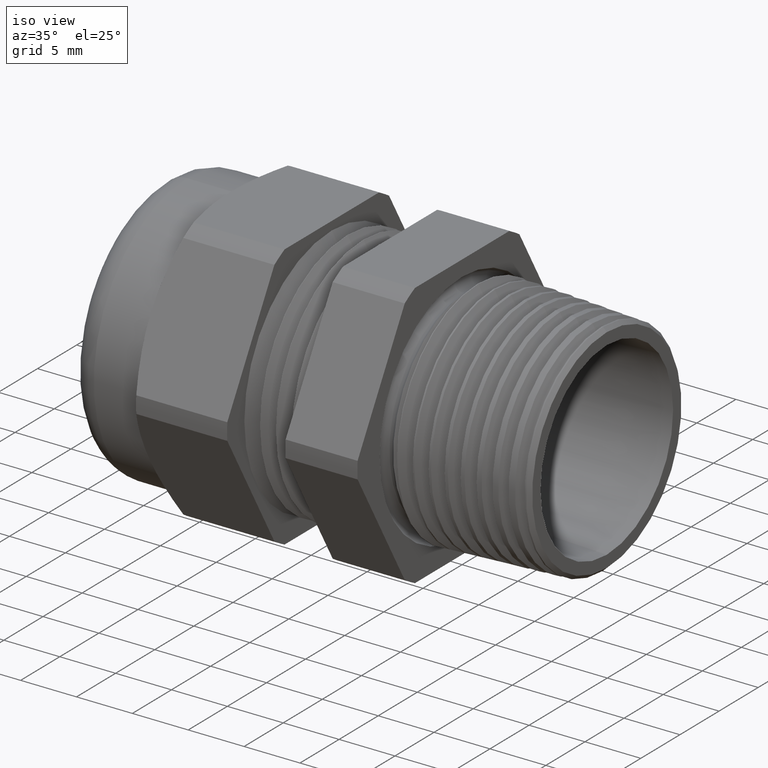
[diagram: clean part render]
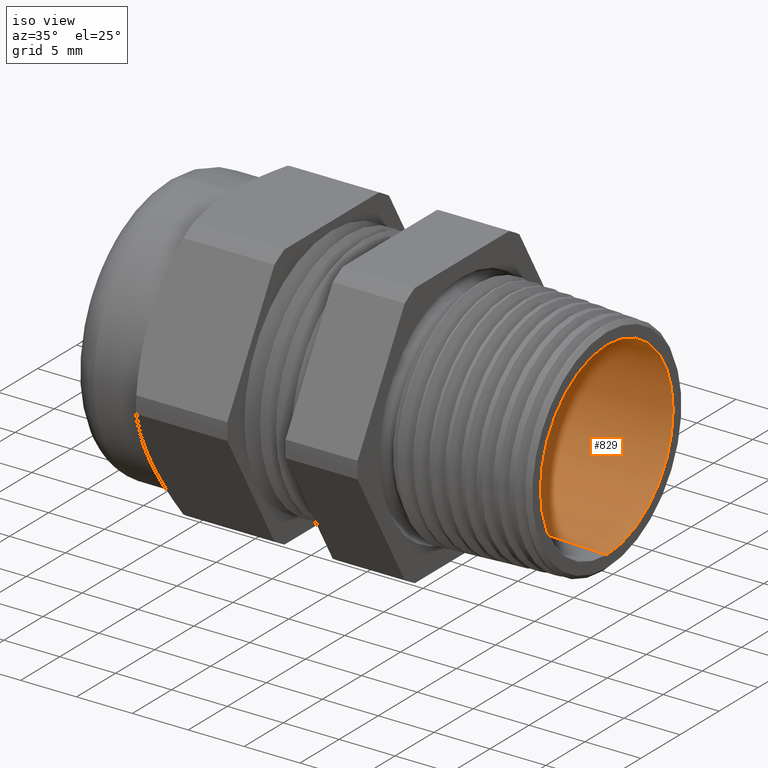
[diagram: same view with one face highlighted and labeled with its STEP entity id]
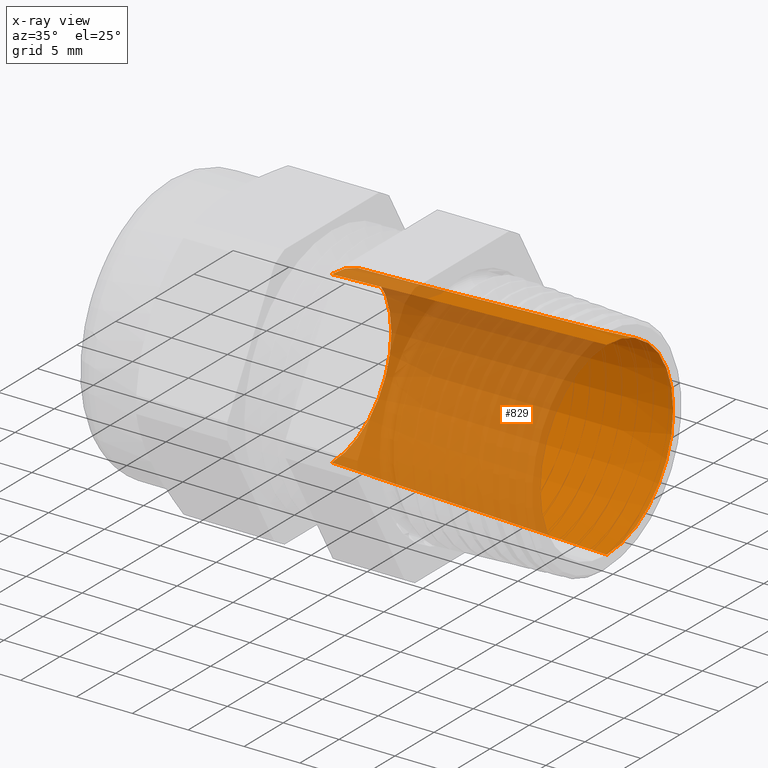
[diagram: x-ray of the same camera — body ghosted, the highlighted face saturated]
A machine part, iso view. The second image highlights one B-rep face of the part: STEP entity #829.
The next image is the same camera in x-ray: the body ghosted, the highlighted face saturated — about 62% of this face is hidden behind the body in this view.
In plain terms, the highlighted conical surface has half-angle 2 deg.
Its self-contained STEP definition (entity closure, byte-faithful):
#430 = EDGE_CURVE ( 'NONE', #453, #504, #1615, .T. ) ;
#433 = VERTEX_POINT ( 'NONE', #1606 ) ;
#445 = EDGE_CURVE ( 'NONE', #452, #433, #1647, .T. ) ;
#452 = VERTEX_POINT ( 'NONE', #1622 ) ;
#453 = VERTEX_POINT ( 'NONE', #1621 ) ;
#504 = VERTEX_POINT ( 'NONE', #1728 ) ;
#752 = EDGE_LOOP ( 'NONE', ( #805, #806, #808, #809 ) ) ;
#805 = ORIENTED_EDGE ( 'NONE', *, *, #430, .F. ) ;
#806 = ORIENTED_EDGE ( 'NONE', *, *, #807, .T. ) ;
#807 = EDGE_CURVE ( 'NONE', #453, #452, #2308, .T. ) ;
#808 = ORIENTED_EDGE ( 'NONE', *, *, #445, .T. ) ;
#809 = ORIENTED_EDGE ( 'NONE', *, *, #828, .F. ) ;
#828 = EDGE_CURVE ( 'NONE', #504, #433, #2336, .T. ) ;
#829 = ADVANCED_FACE ( 'NONE', ( #2331 ), #2330, .F. ) ;
#1606 = CARTESIAN_POINT ( 'NONE',  ( 0.5100000000000000100, 0.0000000000000000000, -0.3338440457657528300 ) ) ;
#1612 = DIRECTION ( 'NONE',  ( 0.9993908270190957600, 4.273955692857225800E-018, 0.03489949670250165600 ) ) ;
#1613 = VECTOR ( 'NONE', #1612, 39.37007874015748900 ) ;
#1614 = CARTESIAN_POINT ( 'NONE',  ( -0.4591666666666667800, 3.673940397442058900E-017, 0.2999999999999999900 ) ) ;
#1615 = LINE ( 'NONE', #1614, #1613 ) ;
#1621 = CARTESIAN_POINT ( 'NONE',  ( -0.4591666666666667800, 3.881175409028188200E-017, 0.2999999999999999900 ) ) ;
#1622 = CARTESIAN_POINT ( 'NONE',  ( -0.4591666666666667800, 0.0000000000000000000, -0.2999999999999999900 ) ) ;
#1644 = DIRECTION ( 'NONE',  ( 0.9993908270190957600, 0.0000000000000000000, -0.03489949670250165600 ) ) ;
#1645 = VECTOR ( 'NONE', #1644, 39.37007874015748900 ) ;
#1646 = CARTESIAN_POINT ( 'NONE',  ( -0.4591666666666667800, 0.0000000000000000000, -0.2999999999999999900 ) ) ;
#1647 = LINE ( 'NONE', #1646, #1645 ) ;
#1728 = CARTESIAN_POINT ( 'NONE',  ( 0.5100000000000000100, 4.088410420614316300E-017, 0.3338440457657528300 ) ) ;
#2305 = DIRECTION ( 'NONE',  ( 0.0000000000000000000, 0.0000000000000000000, 1.000000000000000000 ) ) ;
#2306 = DIRECTION ( 'NONE',  ( -1.000000000000000000, 0.0000000000000000000, 0.0000000000000000000 ) ) ;
#2307 = AXIS2_PLACEMENT_3D ( 'NONE', #2314, #2306, #2305 ) ;
#2308 = CIRCLE ( 'NONE', #2307, 0.2999999999999999900 ) ;
#2314 = CARTESIAN_POINT ( 'NONE',  ( -0.4591666666666667800, 0.0000000000000000000, 0.0000000000000000000 ) ) ;
#2325 = DIRECTION ( 'NONE',  ( 0.0000000000000000000, 0.0000000000000000000, -1.000000000000000000 ) ) ;
#2326 = DIRECTION ( 'NONE',  ( 1.000000000000000000, 0.0000000000000000000, 0.0000000000000000000 ) ) ;
#2327 = CARTESIAN_POINT ( 'NONE',  ( -0.4591666666666667800, 0.0000000000000000000, 0.0000000000000000000 ) ) ;
#2328 = AXIS2_PLACEMENT_3D ( 'NONE', #2327, #2326, #2325 ) ;
#2330 = CONICAL_SURFACE ( 'NONE', #2328, 0.2999999999999999900, 0.03490658503988727800 ) ;
#2331 = FACE_OUTER_BOUND ( 'NONE', #752, .T. ) ;
#2332 = DIRECTION ( 'NONE',  ( 0.0000000000000000000, 0.0000000000000000000, 1.000000000000000000 ) ) ;
#2333 = DIRECTION ( 'NONE',  ( -1.000000000000000000, 0.0000000000000000000, 0.0000000000000000000 ) ) ;
#2334 = CARTESIAN_POINT ( 'NONE',  ( 0.5100000000000000100, 0.0000000000000000000, 0.0000000000000000000 ) ) ;
#2335 = AXIS2_PLACEMENT_3D ( 'NONE', #2334, #2333, #2332 ) ;
#2336 = CIRCLE ( 'NONE', #2335, 0.3338440457657528300 ) ;